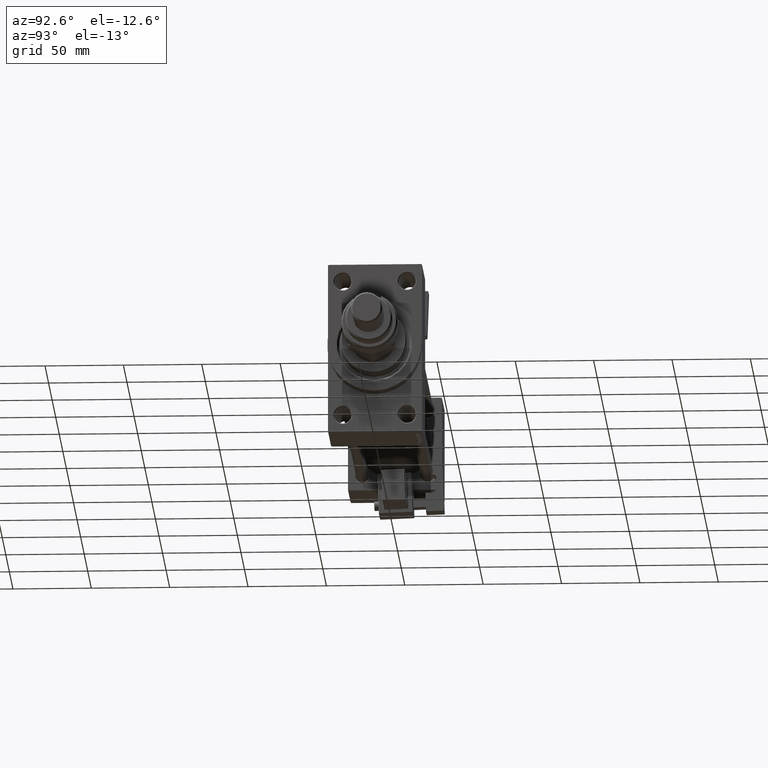
[diagram: clean part render]
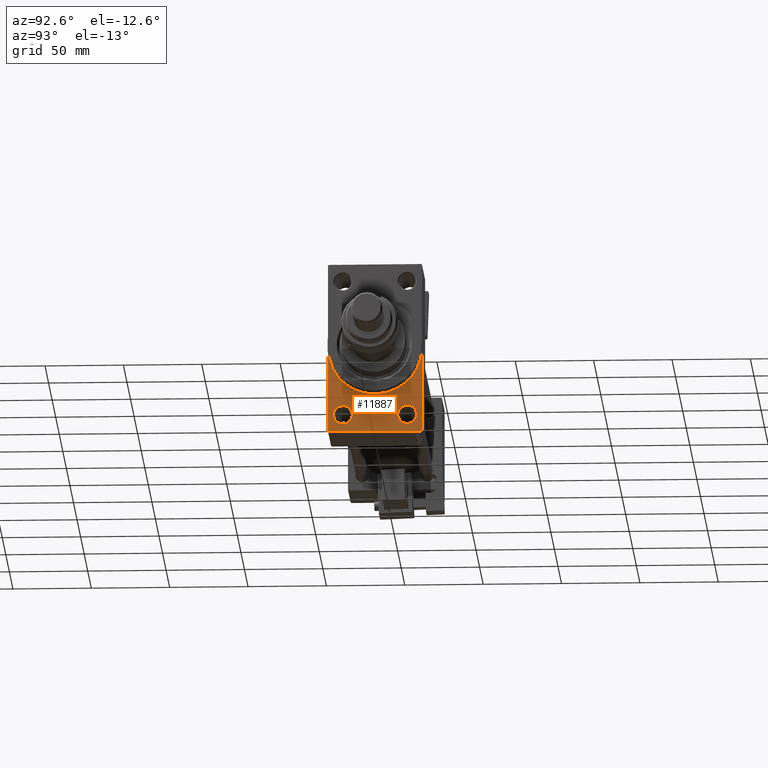
[diagram: same view with one face highlighted and labeled with its STEP entity id]
A machine part, auxiliary view. The second image highlights one B-rep face of the part: STEP entity #11887.
In plain terms, the highlighted planar face has unit normal (-1, 0, 0).
Its self-contained STEP definition (entity closure, byte-faithful):
#37 = CARTESIAN_POINT ( 'NONE',  ( 317.9999999999999432, -20.50000000000000000, -43.50000000000000000 ) ) ;
#627 = CARTESIAN_POINT ( 'NONE',  ( 317.9999999999999432, 29.99999999999999645, -53.99999999999996447 ) ) ;
#956 = DIRECTION ( 'NONE',  ( -1.000000000000000000, 0.000000000000000000, -0.000000000000000000 ) ) ;
#1372 = CARTESIAN_POINT ( 'NONE',  ( 317.9999999999999432, 20.50000000000000000, -37.50000000000002132 ) ) ;
#1689 = ORIENTED_EDGE ( 'NONE', *, *, #45703, .F. ) ;
#1850 = CARTESIAN_POINT ( 'NONE',  ( 317.9999999999999432, 29.99999999999999645, 54.49999999999999289 ) ) ;
#2065 = LINE ( 'NONE', #34513, #21095 ) ;
#2073 = CIRCLE ( 'NONE', #47915, 30.00000000000000000 ) ;
#2427 = ORIENTED_EDGE ( 'NONE', *, *, #47767, .F. ) ;
#3123 = EDGE_CURVE ( 'NONE', #12998, #42218, #2073, .T. ) ;
#3605 = EDGE_CURVE ( 'NONE', #4608, #12998, #43668, .T. ) ;
#3752 = VERTEX_POINT ( 'NONE', #39409 ) ;
#4608 = VERTEX_POINT ( 'NONE', #42576 ) ;
#5346 = ORIENTED_EDGE ( 'NONE', *, *, #31908, .T. ) ;
#5488 = AXIS2_PLACEMENT_3D ( 'NONE', #34741, #25990, #34481 ) ;
#6079 = CARTESIAN_POINT ( 'NONE',  ( 317.9999999999999432, -30.00000000000000000, 54.50000000000000000 ) ) ;
#6800 = CARTESIAN_POINT ( 'NONE',  ( 317.9999999999999432, 29.49999999999999645, -54.49999999999999289 ) ) ;
#8941 = CARTESIAN_POINT ( 'NONE',  ( 317.9999999999999432, -20.50000000000000000, -43.50000000000000000 ) ) ;
#10034 = CARTESIAN_POINT ( 'NONE',  ( 317.9999999999999432, 30.00000000000000000, 0.000000000000000000 ) ) ;
#10613 = AXIS2_PLACEMENT_3D ( 'NONE', #8941, #956, #29698 ) ;
#10676 = DIRECTION ( 'NONE',  ( -1.000000000000000000, 0.000000000000000000, -0.000000000000000000 ) ) ;
#11887 = ADVANCED_FACE ( 'NONE', ( #38330, #42844, #46571 ), #34343, .F. ) ;
#12389 = DIRECTION ( 'NONE',  ( -1.000000000000000000, 0.000000000000000000, -0.000000000000000000 ) ) ;
#12468 = VERTEX_POINT ( 'NONE', #24870 ) ;
#12998 = VERTEX_POINT ( 'NONE', #30911 ) ;
#15179 = EDGE_CURVE ( 'NONE', #4608, #47256, #37999, .T. ) ;
#16030 = ORIENTED_EDGE ( 'NONE', *, *, #42567, .T. ) ;
#17274 = DIRECTION ( 'NONE',  ( 0.000000000000000000, 0.000000000000000000, 1.000000000000000000 ) ) ;
#18530 = ORIENTED_EDGE ( 'NONE', *, *, #37844, .T. ) ;
#18712 = ORIENTED_EDGE ( 'NONE', *, *, #23340, .T. ) ;
#18771 = VERTEX_POINT ( 'NONE', #6800 ) ;
#19196 = CARTESIAN_POINT ( 'NONE',  ( 317.9999999999999432, -20.50000000000000000, -37.50000000000002132 ) ) ;
#19377 = ORIENTED_EDGE ( 'NONE', *, *, #3605, .F. ) ;
#19855 = DIRECTION ( 'NONE',  ( 0.000000000000000000, 0.000000000000000000, 1.000000000000000000 ) ) ;
#21024 = EDGE_LOOP ( 'NONE', ( #18712, #32174 ) ) ;
#21095 = VECTOR ( 'NONE', #50725, 1000.000000000000000 ) ;
#21381 = DIRECTION ( 'NONE',  ( -0.000000000000000000, 0.7071067811865279218, 0.7071067811865672237 ) ) ;
#23340 = EDGE_CURVE ( 'NONE', #28666, #28367, #48131, .T. ) ;
#24260 = CIRCLE ( 'NONE', #33574, 5.999999999999977796 ) ;
#24870 = CARTESIAN_POINT ( 'NONE',  ( 317.9999999999999432, 29.99999999999999645, -53.99999999999996447 ) ) ;
#25687 = AXIS2_PLACEMENT_3D ( 'NONE', #26118, #10676, #34861 ) ;
#25771 = CARTESIAN_POINT ( 'NONE',  ( 317.9999999999999432, 20.50000000000000000, -43.50000000000000000 ) ) ;
#25990 = DIRECTION ( 'NONE',  ( 1.000000000000000000, 0.000000000000000000, 0.000000000000000000 ) ) ;
#26118 = CARTESIAN_POINT ( 'NONE',  ( 317.9999999999999432, 0.000000000000000000, 0.000000000000000000 ) ) ;
#27066 = EDGE_LOOP ( 'NONE', ( #43861, #18530 ) ) ;
#27441 = CARTESIAN_POINT ( 'NONE',  ( 317.9999999999999432, -30.00000000000000000, -53.99999999999998579 ) ) ;
#27609 = CIRCLE ( 'NONE', #10613, 5.999999999999977796 ) ;
#28026 = DIRECTION ( 'NONE',  ( 0.000000000000000000, 0.7071067811865157093, -0.7071067811865794361 ) ) ;
#28367 = VERTEX_POINT ( 'NONE', #1372 ) ;
#28370 = EDGE_LOOP ( 'NONE', ( #28831, #16030, #2427, #5346, #1689, #51253, #19377 ) ) ;
#28666 = VERTEX_POINT ( 'NONE', #36871 ) ;
#28828 = LINE ( 'NONE', #627, #35831 ) ;
#28831 = ORIENTED_EDGE ( 'NONE', *, *, #15179, .T. ) ;
#29698 = DIRECTION ( 'NONE',  ( 0.000000000000000000, 0.000000000000000000, 1.000000000000000000 ) ) ;
#30322 = LINE ( 'NONE', #1850, #37965 ) ;
#30911 = CARTESIAN_POINT ( 'NONE',  ( 317.9999999999999432, 3.673940397442059178E-15, -30.00000000000000000 ) ) ;
#31908 = EDGE_CURVE ( 'NONE', #18771, #12468, #28828, .T. ) ;
#32174 = ORIENTED_EDGE ( 'NONE', *, *, #38742, .T. ) ;
#32280 = CARTESIAN_POINT ( 'NONE',  ( 317.9999999999999432, -29.50000000000002842, -54.50000000000000000 ) ) ;
#32453 = DIRECTION ( 'NONE',  ( 0.000000000000000000, 0.000000000000000000, -1.000000000000000000 ) ) ;
#33209 = DIRECTION ( 'NONE',  ( -1.000000000000000000, 0.000000000000000000, -0.000000000000000000 ) ) ;
#33574 = AXIS2_PLACEMENT_3D ( 'NONE', #25771, #33209, #17274 ) ;
#33605 = VECTOR ( 'NONE', #28026, 999.9999999999998863 ) ;
#34343 = PLANE ( 'NONE',  #25687 ) ;
#34481 = DIRECTION ( 'NONE',  ( 0.000000000000000000, 0.000000000000000000, -1.000000000000000000 ) ) ;
#34513 = CARTESIAN_POINT ( 'NONE',  ( 317.9999999999999432, 29.99999999999999645, -54.49999999999999289 ) ) ;
#34741 = CARTESIAN_POINT ( 'NONE',  ( 317.9999999999999432, 0.000000000000000000, 0.000000000000000000 ) ) ;
#34861 = DIRECTION ( 'NONE',  ( -0.000000000000000000, 0.000000000000000000, 1.000000000000000000 ) ) ;
#35831 = VECTOR ( 'NONE', #21381, 1000.000000000000000 ) ;
#35939 = VERTEX_POINT ( 'NONE', #19196 ) ;
#36099 = AXIS2_PLACEMENT_3D ( 'NONE', #37, #44431, #40439 ) ;
#36254 = AXIS2_PLACEMENT_3D ( 'NONE', #48807, #12389, #19855 ) ;
#36871 = CARTESIAN_POINT ( 'NONE',  ( 317.9999999999999432, 20.50000000000000000, -49.49999999999997158 ) ) ;
#37821 = CIRCLE ( 'NONE', #36099, 5.999999999999977796 ) ;
#37844 = EDGE_CURVE ( 'NONE', #35939, #3752, #27609, .T. ) ;
#37965 = VECTOR ( 'NONE', #42267, 1000.000000000000000 ) ;
#37999 = LINE ( 'NONE', #6079, #48785 ) ;
#38330 = FACE_BOUND ( 'NONE', #27066, .T. ) ;
#38742 = EDGE_CURVE ( 'NONE', #28367, #28666, #24260, .T. ) ;
#39409 = CARTESIAN_POINT ( 'NONE',  ( 317.9999999999999432, -20.50000000000000000, -49.49999999999997158 ) ) ;
#40439 = DIRECTION ( 'NONE',  ( 0.000000000000000000, 0.000000000000000000, 1.000000000000000000 ) ) ;
#40890 = CARTESIAN_POINT ( 'NONE',  ( 317.9999999999999432, -29.50000000000002842, -54.50000000000000000 ) ) ;
#41613 = EDGE_CURVE ( 'NONE', #3752, #35939, #37821, .T. ) ;
#41966 = VERTEX_POINT ( 'NONE', #40890 ) ;
#42218 = VERTEX_POINT ( 'NONE', #10034 ) ;
#42267 = DIRECTION ( 'NONE',  ( 0.000000000000000000, 0.000000000000000000, -1.000000000000000000 ) ) ;
#42567 = EDGE_CURVE ( 'NONE', #47256, #41966, #47955, .T. ) ;
#42576 = CARTESIAN_POINT ( 'NONE',  ( 317.9999999999999432, -30.00000000000000000, 0.000000000000000000 ) ) ;
#42775 = DIRECTION ( 'NONE',  ( 0.000000000000000000, 0.000000000000000000, -1.000000000000000000 ) ) ;
#42844 = FACE_BOUND ( 'NONE', #21024, .T. ) ;
#43668 = CIRCLE ( 'NONE', #5488, 30.00000000000000000 ) ;
#43861 = ORIENTED_EDGE ( 'NONE', *, *, #41613, .T. ) ;
#44145 = CARTESIAN_POINT ( 'NONE',  ( 317.9999999999999432, 0.000000000000000000, 0.000000000000000000 ) ) ;
#44431 = DIRECTION ( 'NONE',  ( -1.000000000000000000, 0.000000000000000000, -0.000000000000000000 ) ) ;
#45703 = EDGE_CURVE ( 'NONE', #42218, #12468, #30322, .T. ) ;
#46571 = FACE_OUTER_BOUND ( 'NONE', #28370, .T. ) ;
#47256 = VERTEX_POINT ( 'NONE', #27441 ) ;
#47767 = EDGE_CURVE ( 'NONE', #18771, #41966, #2065, .T. ) ;
#47915 = AXIS2_PLACEMENT_3D ( 'NONE', #44145, #52388, #32453 ) ;
#47955 = LINE ( 'NONE', #32280, #33605 ) ;
#48131 = CIRCLE ( 'NONE', #36254, 5.999999999999977796 ) ;
#48785 = VECTOR ( 'NONE', #42775, 1000.000000000000000 ) ;
#48807 = CARTESIAN_POINT ( 'NONE',  ( 317.9999999999999432, 20.50000000000000000, -43.50000000000000000 ) ) ;
#50725 = DIRECTION ( 'NONE',  ( 0.000000000000000000, -1.000000000000000000, -1.156482317317871478E-16 ) ) ;
#51253 = ORIENTED_EDGE ( 'NONE', *, *, #3123, .F. ) ;
#52388 = DIRECTION ( 'NONE',  ( 1.000000000000000000, 0.000000000000000000, 0.000000000000000000 ) ) ;